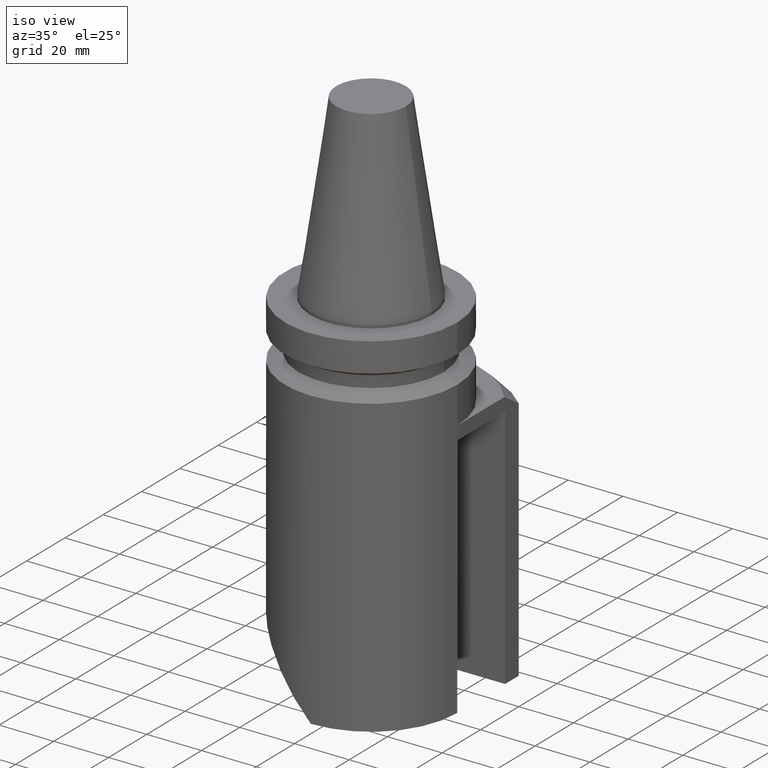
[diagram: clean part render]
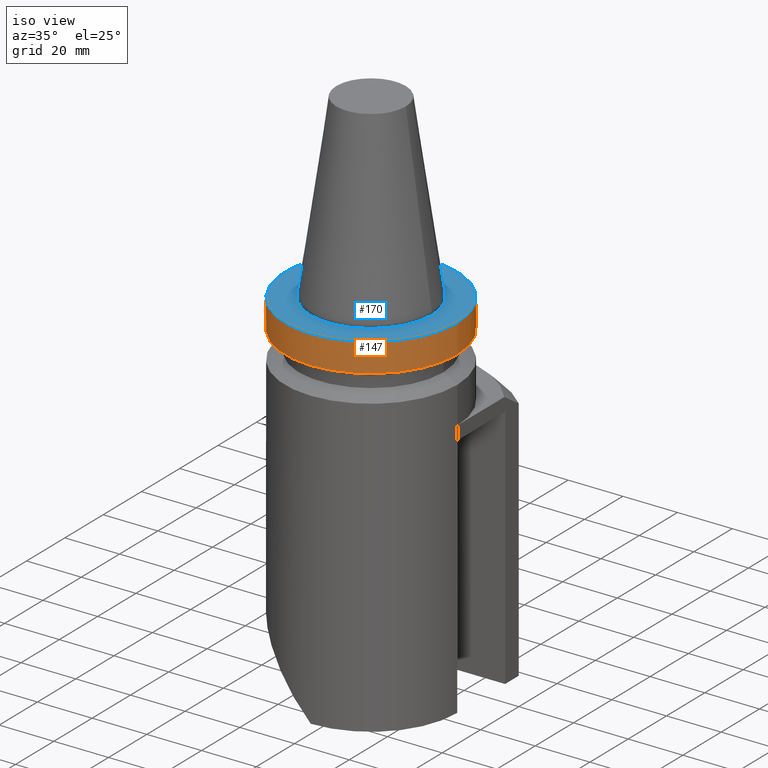
[diagram: same view with the hole feature highlighted: cylindrical wall and planar end face, labeled with their STEP entity ids]
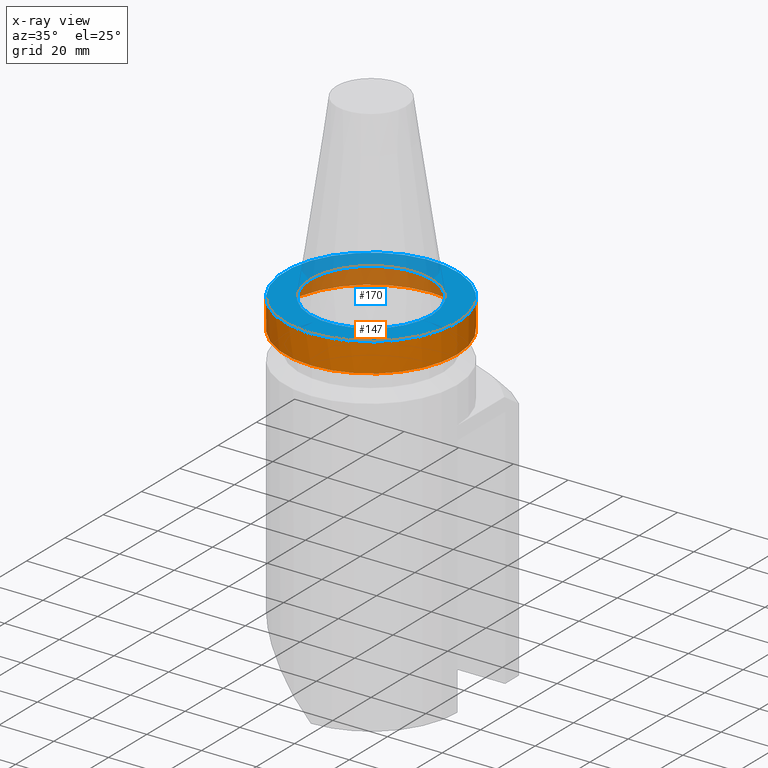
[diagram: x-ray of the same camera — body ghosted, the hole faces saturated]
A machine part, iso view. The highlighted faces form one hole feature of diameter 63 mm: the cylindrical wall (entity #147, orange) and its adjacent planar end face (entity #170, blue) — they share a circular edge in the B-rep.
The next image is the same camera in x-ray (body ghosted, the hole faces saturated) — the bore reads through the body.
Wall:
#105=EDGE_CURVE('240[2]',#282,#282,#283,.T.);
#122=EDGE_CURVE('240[2]',#308,#308,#309,.T.);
#147=ADVANCED_FACE('240[2]',(#339,#340),#341,.T.);
#282=VERTEX_POINT('',#518);
#283=CIRCLE('',#519,31.5);
#308=VERTEX_POINT('',#558);
#309=CIRCLE('',#559,31.5);
#339=FACE_BOUND('',#605,.T.);
#340=FACE_BOUND('',#606,.T.);
#341=CYLINDRICAL_SURFACE('',#607,31.5);
#518=CARTESIAN_POINT('',(-31.5000000001728,5.07616098249752E-015,-11.6));
#519=AXIS2_PLACEMENT_3D('',#778,#779,#780);
#558=CARTESIAN_POINT('',(31.5,-5.84768846592861E-015,-0.999999999999996));
#559=AXIS2_PLACEMENT_3D('',#813,#814,#815);
#605=EDGE_LOOP('',(#848));
#606=EDGE_LOOP('',(#849));
#607=AXIS2_PLACEMENT_3D('',#850,#851,#852);
#778=CARTESIAN_POINT('',(1.42059028701093E-015,-7.10295143505465E-016,-11.6));
#779=DIRECTION('',(1.22464679914735E-016,-6.12323399573677E-017,-1.0));
#780=DIRECTION('',(1.0,-1.83697019872103E-016,1.22464679914735E-016));
#813=CARTESIAN_POINT('',(1.22464679914735E-016,-6.12323399573677E-017,-1.0));
#814=DIRECTION('',(1.22464679914735E-016,-6.12323399573677E-017,-1.0));
#815=DIRECTION('',(1.0,-1.83697019872103E-016,1.22464679914735E-016));
#848=ORIENTED_EDGE('',*,*,#105,.F.);
#849=ORIENTED_EDGE('',*,*,#122,.T.);
#850=CARTESIAN_POINT('',(7.71527483462832E-016,-3.85763741731416E-016,-6.3));
#851=DIRECTION('',(-1.22464679914735E-016,6.12323399573677E-017,1.0));
#852=DIRECTION('',(1.0,-1.83697019872103E-016,1.22464679914735E-016));
End face:
#122=EDGE_CURVE('240[2]',#308,#308,#309,.T.);
#135=EDGE_CURVE('240[2]',#325,#325,#326,.T.);
#170=ADVANCED_FACE('240[2]',(#370,#371),#372,.T.);
#308=VERTEX_POINT('',#558);
#309=CIRCLE('',#559,31.5);
#325=VERTEX_POINT('',#583);
#326=CIRCLE('',#584,22.225);
#370=FACE_OUTER_BOUND('',#645,.T.);
#371=FACE_BOUND('',#646,.T.);
#372=PLANE('',#647);
#558=CARTESIAN_POINT('',(31.5,-5.84768846592861E-015,-0.999999999999996));
#559=AXIS2_PLACEMENT_3D('',#813,#814,#815);
#583=CARTESIAN_POINT('',(22.225,-4.14389860661486E-015,-0.999999999999997));
#584=AXIS2_PLACEMENT_3D('',#832,#833,#834);
#645=EDGE_LOOP('',(#885));
#646=EDGE_LOOP('',(#886));
#647=AXIS2_PLACEMENT_3D('',#887,#888,#889);
#813=CARTESIAN_POINT('',(1.22464679914735E-016,-6.12323399573677E-017,-1.0));
#814=DIRECTION('',(1.22464679914735E-016,-6.12323399573677E-017,-1.0));
#815=DIRECTION('',(1.0,-1.83697019872103E-016,1.22464679914735E-016));
#832=CARTESIAN_POINT('',(1.22464679914735E-016,-6.12323399573677E-017,-1.0));
#833=DIRECTION('',(1.22464679914735E-016,-6.12323399573677E-017,-1.0));
#834=DIRECTION('',(1.0,-1.83697019872103E-016,1.22464679914735E-016));
#885=ORIENTED_EDGE('',*,*,#122,.F.);
#886=ORIENTED_EDGE('',*,*,#135,.T.);
#887=CARTESIAN_POINT('',(26.8625,-4.99579353627173E-015,-0.999999999999997));
#888=DIRECTION('',(-4.59169004331693E-049,6.12323399573677E-017,1.0));
#889=DIRECTION('',(1.0,7.49879891330927E-033,0.0));